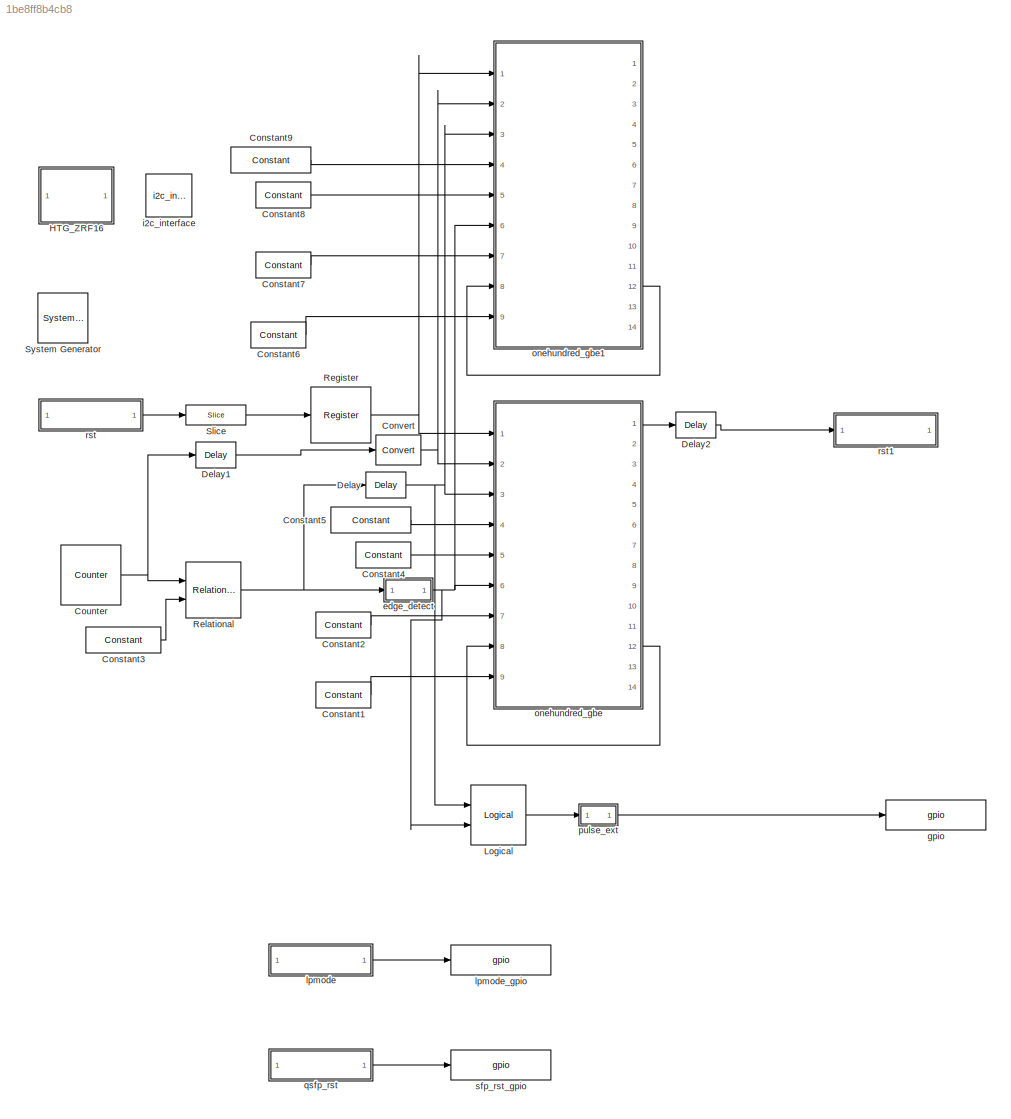
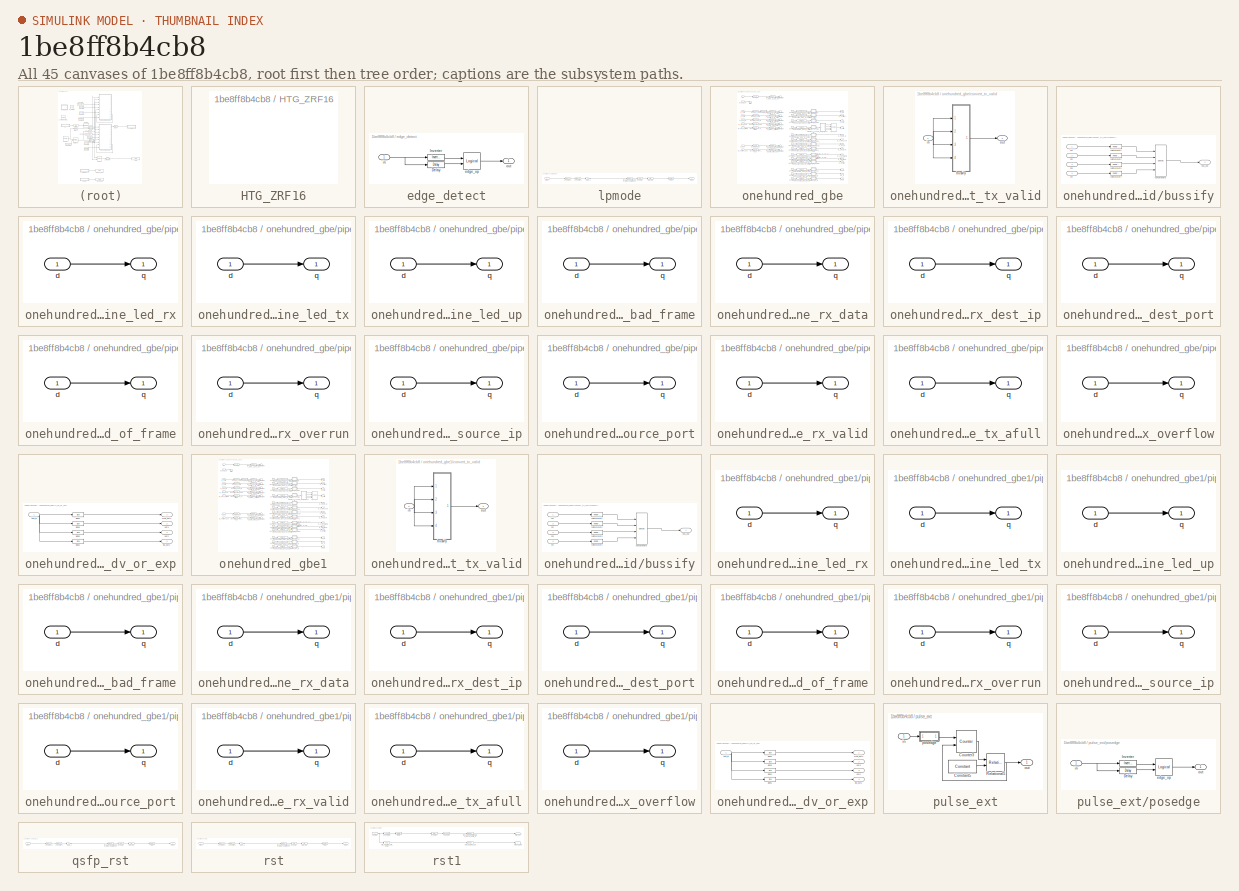
[diagram: thumbnail index - all 45 canvases of the model, root first then tree order]
MODEL slx_1be8ff8b4cb8
KIND model
CONFIG AbsTol = auto
CONFIG EnableMultiTasking = off
CONFIG FixedStep = auto
CONFIG MaxStep = auto
CONFIG MinStep = auto
CONFIG RelTol = 1e-3
CONFIG SampleTimeConstraint = Unconstrained
CONFIG Solver = VariableStepDiscrete
CONFIG SolverName = VariableStepDiscrete
CONFIG StartTime = 0.0
CONFIG StopTime = 10.0
BLOCK [Reference]  System Generator  REF=xbsIndex_r4/ System Generator
  AttributesFormatString = System\nGenerator
  Ports = []
  SourceBlock = xbsIndex_r4/ System Generator
  SourceType = Xilinx System Generator Block
  Tag = genX
  UserDataPersistent = on
BLOCK [Reference] Constant1  REF=xbsIndex_r4/Constant
  Ports = [0, 1]
  SourceBlock = xbsIndex_r4/Constant
  SourceType = Xilinx Constant Block Block
BLOCK [Reference] Constant2  REF=xbsIndex_r4/Constant
  Ports = [0, 1]
  SourceBlock = xbsIndex_r4/Constant
  SourceType = Xilinx Constant Block Block
BLOCK [Reference] Constant3  REF=xbsIndex_r4/Constant
  Ports = [0, 1]
  SourceBlock = xbsIndex_r4/Constant
  SourceType = Xilinx Constant Block Block
BLOCK [Reference] Constant4  REF=xbsIndex_r4/Constant
  Ports = [0, 1]
  SourceBlock = xbsIndex_r4/Constant
  SourceType = Xilinx Constant Block Block
BLOCK [Reference] Constant5  REF=xbsIndex_r4/Constant
  Ports = [0, 1]
  SourceBlock = xbsIndex_r4/Constant
  SourceType = Xilinx Constant Block Block
BLOCK [Reference] Constant6  REF=xbsIndex_r4/Constant
  Ports = [0, 1]
  SourceBlock = xbsIndex_r4/Constant
  SourceType = Xilinx Constant Block Block
BLOCK [Reference] Constant7  REF=xbsIndex_r4/Constant
  Ports = [0, 1]
  SourceBlock = xbsIndex_r4/Constant
  SourceType = Xilinx Constant Block Block
BLOCK [Reference] Constant8  REF=xbsIndex_r4/Constant
  Ports = [0, 1]
  SourceBlock = xbsIndex_r4/Constant
  SourceType = Xilinx Constant Block Block
BLOCK [Reference] Constant9  REF=xbsIndex_r4/Constant
  Ports = [0, 1]
  SourceBlock = xbsIndex_r4/Constant
  SourceType = Xilinx Constant Block Block
BLOCK [Reference] Convert  REF=xbsIndex_r4/Convert
  Ports = [1, 1]
  SourceBlock = xbsIndex_r4/Convert
  SourceType = Xilinx Type Converter Block
BLOCK [Reference] Counter  REF=xbsIndex_r4/Counter
  Ports = [0, 1]
  SourceBlock = xbsIndex_r4/Counter
  SourceType = Xilinx Counter Block
BLOCK [Reference] Delay  REF=xbsIndex_r4/Delay
  Ports = [1, 1]
  SourceBlock = xbsIndex_r4/Delay
  SourceType = Xilinx Delay Block
BLOCK [Reference] Delay1  REF=xbsIndex_r4/Delay
  Ports = [1, 1]
  SourceBlock = xbsIndex_r4/Delay
  SourceType = Xilinx Delay Block
BLOCK [Reference] Delay2  REF=xbsIndex_r4/Delay
  Ports = [1, 1]
  SourceBlock = xbsIndex_r4/Delay
  SourceType = Xilinx Delay Block
BLOCK [SubSystem] HTG_ZRF16
  Ports = []
  RequestExecContextInheritance = off
  Tag = xps:xsg
BLOCK [Reference] Logical  REF=xbsIndex_r4/Logical
  Ports = [2, 1]
  SourceBlock = xbsIndex_r4/Logical
  SourceType = Xilinx Logical Block Block
BLOCK [Reference] Register  REF=xbsIndex_r4/Register
  Ports = [1, 1]
  SourceBlock = xbsIndex_r4/Register
  SourceType = Xilinx Register Block
BLOCK [Reference] Relational  REF=xbsIndex_r4/Relational
  Ports = [2, 1]
  SourceBlock = xbsIndex_r4/Relational
  SourceType = Xilinx Arithmetic Relational Operator Block
BLOCK [Reference] Slice  REF=xbsIndex_r4/Slice
  Ports = [1, 1]
  SourceBlock = xbsIndex_r4/Slice
  SourceType = Xilinx Bit Slice Extractor Block
BLOCK [SubSystem] edge_detect
  AncestorBlock = casper_library_misc/edge_detect
  AttributesFormatString = falling edges\nactive high
  Ports = [1, 1]
  RequestExecContextInheritance = off
  UserDataPersistent = on
BLOCK [Reference] edge_detect/Delay  REF=xbsIndex_r4/Delay
  Ports = [1, 1]
  SourceBlock = xbsIndex_r4/Delay
  SourceType = Xilinx Delay Block
BLOCK [Reference] edge_detect/Inverter  REF=xbsIndex_r4/Inverter
  Ports = [1, 1]
  SourceBlock = xbsIndex_r4/Inverter
  SourceType = Xilinx Inverter Block
BLOCK [Reference] edge_detect/edge_op  REF=xbsIndex_r4/Logical
  Ports = [2, 1]
  SourceBlock = xbsIndex_r4/Logical
  SourceType = Xilinx Logical Block Block
BLOCK [Inport] edge_detect/in
  IconDisplay = Port number
BLOCK [Outport] edge_detect/out
  IconDisplay = Port number
BLOCK [Reference] gpio  REF=xps_library/IO/gpio  (lib defined in mdl_00b5cec29cd0, mdl_02ab6ecaa3d1, +5 more)
  Ports = [1, 1]
  SourceBlock = xps_library/IO/gpio
  SourceProductName = CASPER XPS Blockset
  SourceType = gpio
  Tag = xps:gpio
BLOCK [Reference] i2c_interface  REF=xps_library/IO/i2c_interface  (lib defined in mdl_00b5cec29cd0, mdl_02ab6ecaa3d1, +5 more)
  Ports = []
  SourceBlock = xps_library/IO/i2c_interface
  SourceProductName = CASPER XPS Blockset
  SourceType = ip
  Tag = xps:i2c_interface
BLOCK [SubSystem] lpmode
  AncestorBlock = xps_library/Memory/software_register
  AttributesFormatString = 1input:uf2.0 = 2 bits
  Ports = [1, 1]
  RequestExecContextInheritance = off
  Tag = xps:sw_reg
BLOCK [DataTypeConversion] lpmode/convert1_1
  LockScale = on
  OutDataTypeStr = fixdt('ufix2_En0')
  RndMeth = Floor
  SaturateOnIntegerOverflow = off
BLOCK [DataTypeConversion] lpmode/convert2_1
  ConvertRealWorld = Stored Integer (SI)
  LockScale = on
  OutDataTypeStr = fixdt('ufix2_En0')
  RndMeth = Floor
  SaturateOnIntegerOverflow = off
BLOCK [Gain] lpmode/gain_1
  OutDataTypeStr = Inherit: Inherit via internal rule
  ParamDataTypeStr = Inherit: Inherit via internal rule
  SaturateOnIntegerOverflow = off
BLOCK [Outport] lpmode/in_reg
  IconDisplay = Port number
BLOCK [Reference] lpmode/io_delay  REF=xbsIndex_r4/Delay
  Ports = [1, 1]
  SourceBlock = xbsIndex_r4/Delay
  SourceType = Xilinx Delay Block
BLOCK [Reference] lpmode/reint1  REF=xbsIndex_r4/Reinterpret
  Ports = [1, 1]
  SourceBlock = xbsIndex_r4/Reinterpret
  SourceType = Xilinx Type Reinterpreter Block
BLOCK [Inport] lpmode/sim_1
  IconDisplay = Port number
BLOCK [Reference] lpmode/slice_reg  REF=xbsIndex_r4/Slice
  Ports = [1, 1]
  SourceBlock = xbsIndex_r4/Slice
  SourceType = Xilinx Bit Slice Extractor Block
BLOCK [Reference] lpmode/test_onehundredgbe_jumbo_lpmode_user_data_out  REF=xbsIndex_r4/Gateway In
  Ports = [1, 1]
  SourceBlock = xbsIndex_r4/Gateway In
  SourceType = Xilinx Gateway In Block
BLOCK [Reference] lpmode_gpio  REF=xps_library/IO/gpio  (lib defined in mdl_00b5cec29cd0, mdl_02ab6ecaa3d1, +5 more)
  Ports = [1, 1]
  SourceBlock = xps_library/IO/gpio
  SourceProductName = CASPER XPS Blockset
  SourceType = gpio
  Tag = xps:gpio
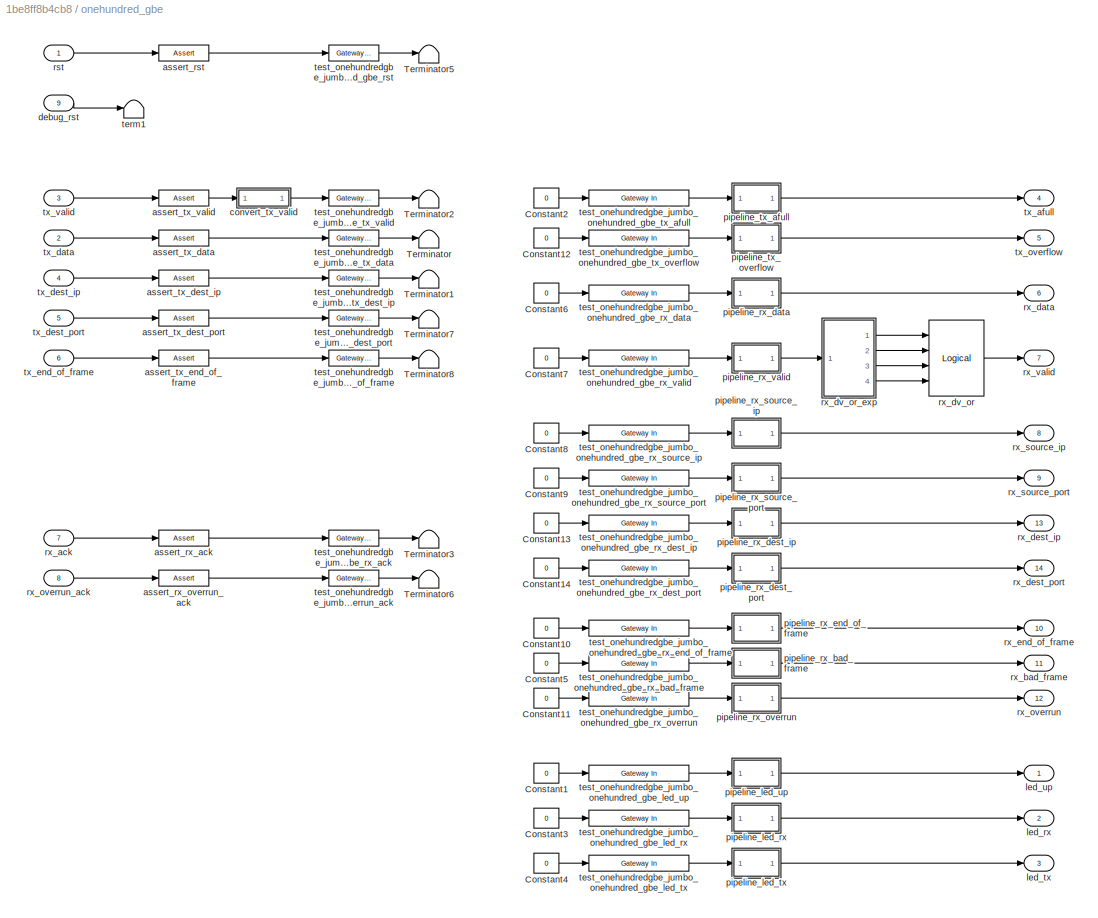
BLOCK [SubSystem] onehundred_gbe
  AncestorBlock = xps_library/IO/onehundred_gbe
  AttributesFormatString = incoming_latency=0
  Ports = [9, 14]
  RequestExecContextInheritance = off
  Tag = xps:onehundred_gbe
BLOCK [Constant] onehundred_gbe/Constant1
  Value = 0
BLOCK [Constant] onehundred_gbe/Constant10
  Value = 0
BLOCK [Constant] onehundred_gbe/Constant11
  Value = 0
BLOCK [Constant] onehundred_gbe/Constant12
  Value = 0
BLOCK [Constant] onehundred_gbe/Constant13
  Value = 0
BLOCK [Constant] onehundred_gbe/Constant14
  Value = 0
BLOCK [Constant] onehundred_gbe/Constant2
  Value = 0
BLOCK [Constant] onehundred_gbe/Constant3
  Value = 0
BLOCK [Constant] onehundred_gbe/Constant4
  Value = 0
BLOCK [Constant] onehundred_gbe/Constant5
  Value = 0
BLOCK [Constant] onehundred_gbe/Constant6
  Value = 0
BLOCK [Constant] onehundred_gbe/Constant7
  Value = 0
BLOCK [Constant] onehundred_gbe/Constant8
  Value = 0
BLOCK [Constant] onehundred_gbe/Constant9
  Value = 0
BLOCK [Terminator] onehundred_gbe/Terminator
BLOCK [Terminator] onehundred_gbe/Terminator1
BLOCK [Terminator] onehundred_gbe/Terminator2
BLOCK [Terminator] onehundred_gbe/Terminator3
BLOCK [Terminator] onehundred_gbe/Terminator5
BLOCK [Terminator] onehundred_gbe/Terminator6
BLOCK [Terminator] onehundred_gbe/Terminator7
BLOCK [Terminator] onehundred_gbe/Terminator8
BLOCK [Reference] onehundred_gbe/assert_rst  REF=xbsIndex_r4/Assert
  Ports = [1, 1]
  SourceBlock = xbsIndex_r4/Assert
  SourceType = Xilinx Assert Block
BLOCK [Reference] onehundred_gbe/assert_rx_ack  REF=xbsIndex_r4/Assert
  Ports = [1, 1]
  SourceBlock = xbsIndex_r4/Assert
  SourceType = Xilinx Assert Block
BLOCK [Reference] onehundred_gbe/assert_rx_overrun_ack  REF=xbsIndex_r4/Assert
  Ports = [1, 1]
  SourceBlock = xbsIndex_r4/Assert
  SourceType = Xilinx Assert Block
BLOCK [Reference] onehundred_gbe/assert_tx_data  REF=xbsIndex_r4/Assert
  Ports = [1, 1]
  SourceBlock = xbsIndex_r4/Assert
  SourceType = Xilinx Assert Block
BLOCK [Reference] onehundred_gbe/assert_tx_dest_ip  REF=xbsIndex_r4/Assert
  Ports = [1, 1]
  SourceBlock = xbsIndex_r4/Assert
  SourceType = Xilinx Assert Block
BLOCK [Reference] onehundred_gbe/assert_tx_dest_port  REF=xbsIndex_r4/Assert
  Ports = [1, 1]
  SourceBlock = xbsIndex_r4/Assert
  SourceType = Xilinx Assert Block
BLOCK [Reference] onehundred_gbe/assert_tx_end_of_frame  REF=xbsIndex_r4/Assert
  Ports = [1, 1]
  SourceBlock = xbsIndex_r4/Assert
  SourceType = Xilinx Assert Block
BLOCK [Reference] onehundred_gbe/assert_tx_valid  REF=xbsIndex_r4/Assert
  Ports = [1, 1]
  SourceBlock = xbsIndex_r4/Assert
  SourceType = Xilinx Assert Block
BLOCK [SubSystem] onehundred_gbe/convert_tx_valid
  AncestorBlock = casper_library_bus/bus_replicate
  Ports = [1, 1]
  RequestExecContextInheritance = off
  UserDataPersistent = on
BLOCK [SubSystem] onehundred_gbe/convert_tx_valid/bussify
  AncestorBlock = casper_library_flow_control/bus_create
  Ports = [4, 1]
  RequestExecContextInheritance = off
  UserDataPersistent = on
BLOCK [Outport] onehundred_gbe/convert_tx_valid/bussify/bus_out
  IconDisplay = Port number
BLOCK [Reference] onehundred_gbe/convert_tx_valid/bussify/concatenate  REF=xbsIndex_r4/Concat
  Ports = [4, 1]
  SourceBlock = xbsIndex_r4/Concat
  SourceType = Xilinx Bus Concatenator Block
BLOCK [Inport] onehundred_gbe/convert_tx_valid/bussify/in1
  IconDisplay = Port number
BLOCK [Inport] onehundred_gbe/convert_tx_valid/bussify/in2
  IconDisplay = Port number
  Port = 2
BLOCK [Inport] onehundred_gbe/convert_tx_valid/bussify/in3
  IconDisplay = Port number
  Port = 3
BLOCK [Inport] onehundred_gbe/convert_tx_valid/bussify/in4
  IconDisplay = Port number
  Port = 4
BLOCK [Reference] onehundred_gbe/convert_tx_valid/bussify/reinterpret1  REF=xbsIndex_r4/Reinterpret
  Ports = [1, 1]
  SourceBlock = xbsIndex_r4/Reinterpret
  SourceType = Xilinx Type Reinterpreter Block
BLOCK [Reference] onehundred_gbe/convert_tx_valid/bussify/reinterpret2  REF=xbsIndex_r4/Reinterpret
  Ports = [1, 1]
  SourceBlock = xbsIndex_r4/Reinterpret
  SourceType = Xilinx Type Reinterpreter Block
BLOCK [Reference] onehundred_gbe/convert_tx_valid/bussify/reinterpret3  REF=xbsIndex_r4/Reinterpret
  Ports = [1, 1]
  SourceBlock = xbsIndex_r4/Reinterpret
  SourceType = Xilinx Type Reinterpreter Block
BLOCK [Reference] onehundred_gbe/convert_tx_valid/bussify/reinterpret4  REF=xbsIndex_r4/Reinterpret
  Ports = [1, 1]
  SourceBlock = xbsIndex_r4/Reinterpret
  SourceType = Xilinx Type Reinterpreter Block
BLOCK [Inport] onehundred_gbe/convert_tx_valid/in
  IconDisplay = Port number
BLOCK [Outport] onehundred_gbe/convert_tx_valid/out
  IconDisplay = Port number
BLOCK [Inport] onehundred_gbe/debug_rst
  IconDisplay = Port number
  Port = 9
BLOCK [Outport] onehundred_gbe/led_rx
  IconDisplay = Port number
  Port = 2
BLOCK [Outport] onehundred_gbe/led_tx
  IconDisplay = Port number
  Port = 3
BLOCK [Outport] onehundred_gbe/led_up
  IconDisplay = Port number
BLOCK [SubSystem] onehundred_gbe/pipeline_led_rx
  AncestorBlock = casper_library_delays/pipeline
  AttributesFormatString = Latency = %<latency>
  Ports = [1, 1]
  RequestExecContextInheritance = off
  UserDataPersistent = on
BLOCK [Inport] onehundred_gbe/pipeline_led_rx/d
  IconDisplay = Port number
BLOCK [Outport] onehundred_gbe/pipeline_led_rx/q
  IconDisplay = Port number
BLOCK [SubSystem] onehundred_gbe/pipeline_led_tx
  AncestorBlock = casper_library_delays/pipeline
  AttributesFormatString = Latency = %<latency>
  Ports = [1, 1]
  RequestExecContextInheritance = off
  UserDataPersistent = on
BLOCK [Inport] onehundred_gbe/pipeline_led_tx/d
  IconDisplay = Port number
BLOCK [Outport] onehundred_gbe/pipeline_led_tx/q
  IconDisplay = Port number
BLOCK [SubSystem] onehundred_gbe/pipeline_led_up
  AncestorBlock = casper_library_delays/pipeline
  AttributesFormatString = Latency = %<latency>
  Ports = [1, 1]
  RequestExecContextInheritance = off
  UserDataPersistent = on
BLOCK [Inport] onehundred_gbe/pipeline_led_up/d
  IconDisplay = Port number
BLOCK [Outport] onehundred_gbe/pipeline_led_up/q
  IconDisplay = Port number
BLOCK [SubSystem] onehundred_gbe/pipeline_rx_bad_frame
  AncestorBlock = casper_library_delays/pipeline
  AttributesFormatString = Latency = %<latency>
  Ports = [1, 1]
  RequestExecContextInheritance = off
  UserDataPersistent = on
BLOCK [Inport] onehundred_gbe/pipeline_rx_bad_frame/d
  IconDisplay = Port number
BLOCK [Outport] onehundred_gbe/pipeline_rx_bad_frame/q
  IconDisplay = Port number
BLOCK [SubSystem] onehundred_gbe/pipeline_rx_data
  AncestorBlock = casper_library_delays/pipeline
  AttributesFormatString = Latency = %<latency>
  Ports = [1, 1]
  RequestExecContextInheritance = off
  UserDataPersistent = on
BLOCK [Inport] onehundred_gbe/pipeline_rx_data/d
  IconDisplay = Port number
BLOCK [Outport] onehundred_gbe/pipeline_rx_data/q
  IconDisplay = Port number
BLOCK [SubSystem] onehundred_gbe/pipeline_rx_dest_ip
  AncestorBlock = casper_library_delays/pipeline
  AttributesFormatString = Latency = %<latency>
  Ports = [1, 1]
  RequestExecContextInheritance = off
  UserDataPersistent = on
BLOCK [Inport] onehundred_gbe/pipeline_rx_dest_ip/d
  IconDisplay = Port number
BLOCK [Outport] onehundred_gbe/pipeline_rx_dest_ip/q
  IconDisplay = Port number
BLOCK [SubSystem] onehundred_gbe/pipeline_rx_dest_port
  AncestorBlock = casper_library_delays/pipeline
  AttributesFormatString = Latency = %<latency>
  Ports = [1, 1]
  RequestExecContextInheritance = off
  UserDataPersistent = on
BLOCK [Inport] onehundred_gbe/pipeline_rx_dest_port/d
  IconDisplay = Port number
BLOCK [Outport] onehundred_gbe/pipeline_rx_dest_port/q
  IconDisplay = Port number
BLOCK [SubSystem] onehundred_gbe/pipeline_rx_end_of_frame
  AncestorBlock = casper_library_delays/pipeline
  AttributesFormatString = Latency = %<latency>
  Ports = [1, 1]
  RequestExecContextInheritance = off
  UserDataPersistent = on
BLOCK [Inport] onehundred_gbe/pipeline_rx_end_of_frame/d
  IconDisplay = Port number
BLOCK [Outport] onehundred_gbe/pipeline_rx_end_of_frame/q
  IconDisplay = Port number
BLOCK [SubSystem] onehundred_gbe/pipeline_rx_overrun
  AncestorBlock = casper_library_delays/pipeline
  AttributesFormatString = Latency = %<latency>
  Ports = [1, 1]
  RequestExecContextInheritance = off
  UserDataPersistent = on
BLOCK [Inport] onehundred_gbe/pipeline_rx_overrun/d
  IconDisplay = Port number
BLOCK [Outport] onehundred_gbe/pipeline_rx_overrun/q
  IconDisplay = Port number
BLOCK [SubSystem] onehundred_gbe/pipeline_rx_source_ip
  AncestorBlock = casper_library_delays/pipeline
  AttributesFormatString = Latency = %<latency>
  Ports = [1, 1]
  RequestExecContextInheritance = off
  UserDataPersistent = on
BLOCK [Inport] onehundred_gbe/pipeline_rx_source_ip/d
  IconDisplay = Port number
BLOCK [Outport] onehundred_gbe/pipeline_rx_source_ip/q
  IconDisplay = Port number
BLOCK [SubSystem] onehundred_gbe/pipeline_rx_source_port
  AncestorBlock = casper_library_delays/pipeline
  AttributesFormatString = Latency = %<latency>
  Ports = [1, 1]
  RequestExecContextInheritance = off
  UserDataPersistent = on
BLOCK [Inport] onehundred_gbe/pipeline_rx_source_port/d
  IconDisplay = Port number
BLOCK [Outport] onehundred_gbe/pipeline_rx_source_port/q
  IconDisplay = Port number
BLOCK [SubSystem] onehundred_gbe/pipeline_rx_valid
  AncestorBlock = casper_library_delays/pipeline
  AttributesFormatString = Latency = %<latency>
  Ports = [1, 1]
  RequestExecContextInheritance = off
  UserDataPersistent = on
BLOCK [Inport] onehundred_gbe/pipeline_rx_valid/d
  IconDisplay = Port number
BLOCK [Outport] onehundred_gbe/pipeline_rx_valid/q
  IconDisplay = Port number
BLOCK [SubSystem] onehundred_gbe/pipeline_tx_afull
  AncestorBlock = casper_library_delays/pipeline
  AttributesFormatString = Latency = %<latency>
  Ports = [1, 1]
  RequestExecContextInheritance = off
  UserDataPersistent = on
BLOCK [Inport] onehundred_gbe/pipeline_tx_afull/d
  IconDisplay = Port number
BLOCK [Outport] onehundred_gbe/pipeline_tx_afull/q
  IconDisplay = Port number
BLOCK [SubSystem] onehundred_gbe/pipeline_tx_overflow
  AncestorBlock = casper_library_delays/pipeline
  AttributesFormatString = Latency = %<latency>
  Ports = [1, 1]
  RequestExecContextInheritance = off
  UserDataPersistent = on
BLOCK [Inport] onehundred_gbe/pipeline_tx_overflow/d
  IconDisplay = Port number
BLOCK [Outport] onehundred_gbe/pipeline_tx_overflow/q
  IconDisplay = Port number
BLOCK [Inport] onehundred_gbe/rst
  IconDisplay = Port number
BLOCK [Inport] onehundred_gbe/rx_ack
  IconDisplay = Port number
  Port = 7
BLOCK [Outport] onehundred_gbe/rx_bad_frame
  IconDisplay = Port number
  Port = 11
BLOCK [Outport] onehundred_gbe/rx_data
  IconDisplay = Port number
  Port = 6
BLOCK [Outport] onehundred_gbe/rx_dest_ip
  IconDisplay = Port number
  Port = 13
BLOCK [Outport] onehundred_gbe/rx_dest_port
  IconDisplay = Port number
  Port = 14
BLOCK [Reference] onehundred_gbe/rx_dv_or  REF=xbsIndex_r4/Logical
  Ports = [4, 1]
  SourceBlock = xbsIndex_r4/Logical
  SourceType = Xilinx Logical Block Block
BLOCK [SubSystem] onehundred_gbe/rx_dv_or_exp
  AncestorBlock = casper_library_flow_control/bus_expand
  AttributesFormatString = 4 outputs
  Ports = [1, 4]
  RequestExecContextInheritance = off
  UserDataPersistent = on
BLOCK [Inport] onehundred_gbe/rx_dv_or_exp/bus_in
  IconDisplay = Port number
BLOCK [Outport] onehundred_gbe/rx_dv_or_exp/lsb_out1
  IconDisplay = Port number
  Port = 4
BLOCK [Outport] onehundred_gbe/rx_dv_or_exp/msb_out4
  IconDisplay = Port number
BLOCK [Outport] onehundred_gbe/rx_dv_or_exp/out2
  IconDisplay = Port number
  Port = 3
BLOCK [Outport] onehundred_gbe/rx_dv_or_exp/out3
  IconDisplay = Port number
  Port = 2
BLOCK [Reference] onehundred_gbe/rx_dv_or_exp/slice1  REF=xbsIndex_r4/Slice
  Ports = [1, 1]
  SourceBlock = xbsIndex_r4/Slice
  SourceType = Xilinx Bit Slice Extractor Block
BLOCK [Reference] onehundred_gbe/rx_dv_or_exp/slice2  REF=xbsIndex_r4/Slice
  Ports = [1, 1]
  SourceBlock = xbsIndex_r4/Slice
  SourceType = Xilinx Bit Slice Extractor Block
BLOCK [Reference] onehundred_gbe/rx_dv_or_exp/slice3  REF=xbsIndex_r4/Slice
  Ports = [1, 1]
  SourceBlock = xbsIndex_r4/Slice
  SourceType = Xilinx Bit Slice Extractor Block
BLOCK [Reference] onehundred_gbe/rx_dv_or_exp/slice4  REF=xbsIndex_r4/Slice
  Ports = [1, 1]
  SourceBlock = xbsIndex_r4/Slice
  SourceType = Xilinx Bit Slice Extractor Block
BLOCK [Outport] onehundred_gbe/rx_end_of_frame
  IconDisplay = Port number
  Port = 10
BLOCK [Outport] onehundred_gbe/rx_overrun
  IconDisplay = Port number
  Port = 12
BLOCK [Inport] onehundred_gbe/rx_overrun_ack
  IconDisplay = Port number
  Port = 8
BLOCK [Outport] onehundred_gbe/rx_source_ip
  IconDisplay = Port number
  Port = 8
BLOCK [Outport] onehundred_gbe/rx_source_port
  IconDisplay = Port number
  Port = 9
BLOCK [Outport] onehundred_gbe/rx_valid
  IconDisplay = Port number
  Port = 7
BLOCK [Terminator] onehundred_gbe/term1
BLOCK [Reference] onehundred_gbe/test_onehundredgbe_jumbo_onehundred_gbe_led_rx  REF=xbsIndex_r4/Gateway In
  Ports = [1, 1]
  SourceBlock = xbsIndex_r4/Gateway In
  SourceType = Xilinx Gateway In Block
BLOCK [Reference] onehundred_gbe/test_onehundredgbe_jumbo_onehundred_gbe_led_tx  REF=xbsIndex_r4/Gateway In
  Ports = [1, 1]
  SourceBlock = xbsIndex_r4/Gateway In
  SourceType = Xilinx Gateway In Block
BLOCK [Reference] onehundred_gbe/test_onehundredgbe_jumbo_onehundred_gbe_led_up  REF=xbsIndex_r4/Gateway In
  Ports = [1, 1]
  SourceBlock = xbsIndex_r4/Gateway In
  SourceType = Xilinx Gateway In Block
BLOCK [Reference] onehundred_gbe/test_onehundredgbe_jumbo_onehundred_gbe_rst  REF=xbsIndex_r4/Gateway Out
  Ports = [1, 1]
  SourceBlock = xbsIndex_r4/Gateway Out
  SourceType = Xilinx Gateway Out Block
BLOCK [Reference] onehundred_gbe/test_onehundredgbe_jumbo_onehundred_gbe_rx_ack  REF=xbsIndex_r4/Gateway Out
  Ports = [1, 1]
  SourceBlock = xbsIndex_r4/Gateway Out
  SourceType = Xilinx Gateway Out Block
BLOCK [Reference] onehundred_gbe/test_onehundredgbe_jumbo_onehundred_gbe_rx_bad_frame  REF=xbsIndex_r4/Gateway In
  Ports = [1, 1]
  SourceBlock = xbsIndex_r4/Gateway In
  SourceType = Xilinx Gateway In Block
BLOCK [Reference] onehundred_gbe/test_onehundredgbe_jumbo_onehundred_gbe_rx_data  REF=xbsIndex_r4/Gateway In
  Ports = [1, 1]
  SourceBlock = xbsIndex_r4/Gateway In
  SourceType = Xilinx Gateway In Block
BLOCK [Reference] onehundred_gbe/test_onehundredgbe_jumbo_onehundred_gbe_rx_dest_ip  REF=xbsIndex_r4/Gateway In
  Ports = [1, 1]
  SourceBlock = xbsIndex_r4/Gateway In
  SourceType = Xilinx Gateway In Block
BLOCK [Reference] onehundred_gbe/test_onehundredgbe_jumbo_onehundred_gbe_rx_dest_port  REF=xbsIndex_r4/Gateway In
  Ports = [1, 1]
  SourceBlock = xbsIndex_r4/Gateway In
  SourceType = Xilinx Gateway In Block
BLOCK [Reference] onehundred_gbe/test_onehundredgbe_jumbo_onehundred_gbe_rx_end_of_frame  REF=xbsIndex_r4/Gateway In
  Ports = [1, 1]
  SourceBlock = xbsIndex_r4/Gateway In
  SourceType = Xilinx Gateway In Block
BLOCK [Reference] onehundred_gbe/test_onehundredgbe_jumbo_onehundred_gbe_rx_overrun  REF=xbsIndex_r4/Gateway In
  Ports = [1, 1]
  SourceBlock = xbsIndex_r4/Gateway In
  SourceType = Xilinx Gateway In Block
BLOCK [Reference] onehundred_gbe/test_onehundredgbe_jumbo_onehundred_gbe_rx_overrun_ack  REF=xbsIndex_r4/Gateway Out
  Ports = [1, 1]
  SourceBlock = xbsIndex_r4/Gateway Out
  SourceType = Xilinx Gateway Out Block
BLOCK [Reference] onehundred_gbe/test_onehundredgbe_jumbo_onehundred_gbe_rx_source_ip  REF=xbsIndex_r4/Gateway In
  Ports = [1, 1]
  SourceBlock = xbsIndex_r4/Gateway In
  SourceType = Xilinx Gateway In Block
BLOCK [Reference] onehundred_gbe/test_onehundredgbe_jumbo_onehundred_gbe_rx_source_port  REF=xbsIndex_r4/Gateway In
  Ports = [1, 1]
  SourceBlock = xbsIndex_r4/Gateway In
  SourceType = Xilinx Gateway In Block
BLOCK [Reference] onehundred_gbe/test_onehundredgbe_jumbo_onehundred_gbe_rx_valid  REF=xbsIndex_r4/Gateway In
  Ports = [1, 1]
  SourceBlock = xbsIndex_r4/Gateway In
  SourceType = Xilinx Gateway In Block
BLOCK [Reference] onehundred_gbe/test_onehundredgbe_jumbo_onehundred_gbe_tx_afull  REF=xbsIndex_r4/Gateway In
  Ports = [1, 1]
  SourceBlock = xbsIndex_r4/Gateway In
  SourceType = Xilinx Gateway In Block
BLOCK [Reference] onehundred_gbe/test_onehundredgbe_jumbo_onehundred_gbe_tx_data  REF=xbsIndex_r4/Gateway Out
  Ports = [1, 1]
  SourceBlock = xbsIndex_r4/Gateway Out
  SourceType = Xilinx Gateway Out Block
BLOCK [Reference] onehundred_gbe/test_onehundredgbe_jumbo_onehundred_gbe_tx_dest_ip  REF=xbsIndex_r4/Gateway Out
  Ports = [1, 1]
  SourceBlock = xbsIndex_r4/Gateway Out
  SourceType = Xilinx Gateway Out Block
BLOCK [Reference] onehundred_gbe/test_onehundredgbe_jumbo_onehundred_gbe_tx_dest_port  REF=xbsIndex_r4/Gateway Out
  Ports = [1, 1]
  SourceBlock = xbsIndex_r4/Gateway Out
  SourceType = Xilinx Gateway Out Block
BLOCK [Reference] onehundred_gbe/test_onehundredgbe_jumbo_onehundred_gbe_tx_end_of_frame  REF=xbsIndex_r4/Gateway Out
  Ports = [1, 1]
  SourceBlock = xbsIndex_r4/Gateway Out
  SourceType = Xilinx Gateway Out Block
BLOCK [Reference] onehundred_gbe/test_onehundredgbe_jumbo_onehundred_gbe_tx_overflow  REF=xbsIndex_r4/Gateway In
  Ports = [1, 1]
  SourceBlock = xbsIndex_r4/Gateway In
  SourceType = Xilinx Gateway In Block
BLOCK [Reference] onehundred_gbe/test_onehundredgbe_jumbo_onehundred_gbe_tx_valid  REF=xbsIndex_r4/Gateway Out
  Ports = [1, 1]
  SourceBlock = xbsIndex_r4/Gateway Out
  SourceType = Xilinx Gateway Out Block
BLOCK [Outport] onehundred_gbe/tx_afull
  IconDisplay = Port number
  Port = 4
BLOCK [Inport] onehundred_gbe/tx_data
  IconDisplay = Port number
  Port = 2
BLOCK [Inport] onehundred_gbe/tx_dest_ip
  IconDisplay = Port number
  Port = 4
BLOCK [Inport] onehundred_gbe/tx_dest_port
  IconDisplay = Port number
  Port = 5
BLOCK [Inport] onehundred_gbe/tx_end_of_frame
  IconDisplay = Port number
  Port = 6
BLOCK [Outport] onehundred_gbe/tx_overflow
  IconDisplay = Port number
  Port = 5
BLOCK [Inport] onehundred_gbe/tx_valid
  IconDisplay = Port number
  Port = 3
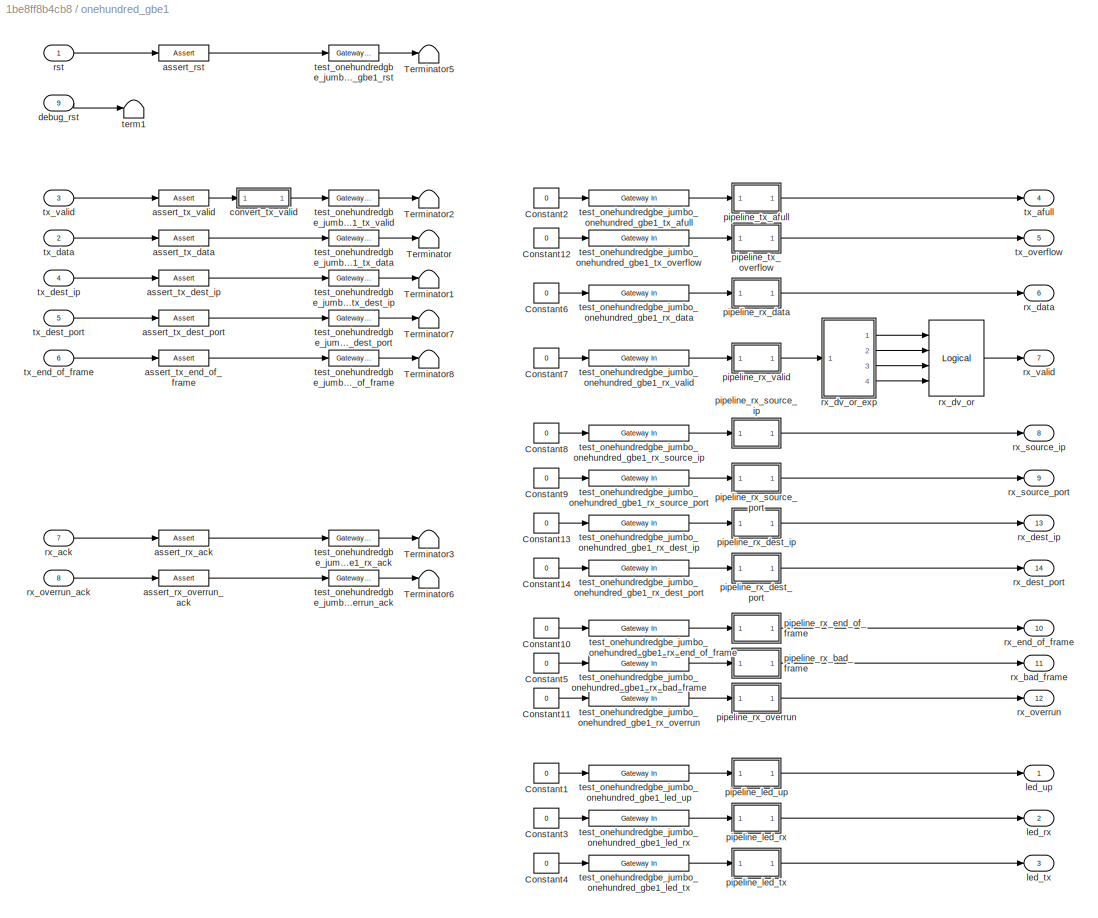
BLOCK [SubSystem] onehundred_gbe1
  AncestorBlock = xps_library/IO/onehundred_gbe
  AttributesFormatString = incoming_latency=0
  Ports = [9, 14]
  RequestExecContextInheritance = off
  Tag = xps:onehundred_gbe
BLOCK [Constant] onehundred_gbe1/Constant1
  Value = 0
BLOCK [Constant] onehundred_gbe1/Constant10
  Value = 0
BLOCK [Constant] onehundred_gbe1/Constant11
  Value = 0
BLOCK [Constant] onehundred_gbe1/Constant12
  Value = 0
BLOCK [Constant] onehundred_gbe1/Constant13
  Value = 0
BLOCK [Constant] onehundred_gbe1/Constant14
  Value = 0
BLOCK [Constant] onehundred_gbe1/Constant2
  Value = 0
BLOCK [Constant] onehundred_gbe1/Constant3
  Value = 0
BLOCK [Constant] onehundred_gbe1/Constant4
  Value = 0
BLOCK [Constant] onehundred_gbe1/Constant5
  Value = 0
BLOCK [Constant] onehundred_gbe1/Constant6
  Value = 0
BLOCK [Constant] onehundred_gbe1/Constant7
  Value = 0
BLOCK [Constant] onehundred_gbe1/Constant8
  Value = 0
BLOCK [Constant] onehundred_gbe1/Constant9
  Value = 0
BLOCK [Terminator] onehundred_gbe1/Terminator
BLOCK [Terminator] onehundred_gbe1/Terminator1
BLOCK [Terminator] onehundred_gbe1/Terminator2
BLOCK [Terminator] onehundred_gbe1/Terminator3
BLOCK [Terminator] onehundred_gbe1/Terminator5
BLOCK [Terminator] onehundred_gbe1/Terminator6
BLOCK [Terminator] onehundred_gbe1/Terminator7
BLOCK [Terminator] onehundred_gbe1/Terminator8
BLOCK [Reference] onehundred_gbe1/assert_rst  REF=xbsIndex_r4/Assert
  Ports = [1, 1]
  SourceBlock = xbsIndex_r4/Assert
  SourceType = Xilinx Assert Block
BLOCK [Reference] onehundred_gbe1/assert_rx_ack  REF=xbsIndex_r4/Assert
  Ports = [1, 1]
  SourceBlock = xbsIndex_r4/Assert
  SourceType = Xilinx Assert Block
BLOCK [Reference] onehundred_gbe1/assert_rx_overrun_ack  REF=xbsIndex_r4/Assert
  Ports = [1, 1]
  SourceBlock = xbsIndex_r4/Assert
  SourceType = Xilinx Assert Block
BLOCK [Reference] onehundred_gbe1/assert_tx_data  REF=xbsIndex_r4/Assert
  Ports = [1, 1]
  SourceBlock = xbsIndex_r4/Assert
  SourceType = Xilinx Assert Block
BLOCK [Reference] onehundred_gbe1/assert_tx_dest_ip  REF=xbsIndex_r4/Assert
  Ports = [1, 1]
  SourceBlock = xbsIndex_r4/Assert
  SourceType = Xilinx Assert Block
BLOCK [Reference] onehundred_gbe1/assert_tx_dest_port  REF=xbsIndex_r4/Assert
  Ports = [1, 1]
  SourceBlock = xbsIndex_r4/Assert
  SourceType = Xilinx Assert Block
BLOCK [Reference] onehundred_gbe1/assert_tx_end_of_frame  REF=xbsIndex_r4/Assert
  Ports = [1, 1]
  SourceBlock = xbsIndex_r4/Assert
  SourceType = Xilinx Assert Block
BLOCK [Reference] onehundred_gbe1/assert_tx_valid  REF=xbsIndex_r4/Assert
  Ports = [1, 1]
  SourceBlock = xbsIndex_r4/Assert
  SourceType = Xilinx Assert Block
BLOCK [SubSystem] onehundred_gbe1/convert_tx_valid
  AncestorBlock = casper_library_bus/bus_replicate
  Ports = [1, 1]
  RequestExecContextInheritance = off
  UserDataPersistent = on
BLOCK [SubSystem] onehundred_gbe1/convert_tx_valid/bussify
  AncestorBlock = casper_library_flow_control/bus_create
  Ports = [4, 1]
  RequestExecContextInheritance = off
  UserDataPersistent = on
BLOCK [Outport] onehundred_gbe1/convert_tx_valid/bussify/bus_out
  IconDisplay = Port number
BLOCK [Reference] onehundred_gbe1/convert_tx_valid/bussify/concatenate  REF=xbsIndex_r4/Concat
  Ports = [4, 1]
  SourceBlock = xbsIndex_r4/Concat
  SourceType = Xilinx Bus Concatenator Block
BLOCK [Inport] onehundred_gbe1/convert_tx_valid/bussify/in1
  IconDisplay = Port number
BLOCK [Inport] onehundred_gbe1/convert_tx_valid/bussify/in2
  IconDisplay = Port number
  Port = 2
BLOCK [Inport] onehundred_gbe1/convert_tx_valid/bussify/in3
  IconDisplay = Port number
  Port = 3
BLOCK [Inport] onehundred_gbe1/convert_tx_valid/bussify/in4
  IconDisplay = Port number
  Port = 4
BLOCK [Reference] onehundred_gbe1/convert_tx_valid/bussify/reinterpret1  REF=xbsIndex_r4/Reinterpret
  Ports = [1, 1]
  SourceBlock = xbsIndex_r4/Reinterpret
  SourceType = Xilinx Type Reinterpreter Block
BLOCK [Reference] onehundred_gbe1/convert_tx_valid/bussify/reinterpret2  REF=xbsIndex_r4/Reinterpret
  Ports = [1, 1]
  SourceBlock = xbsIndex_r4/Reinterpret
  SourceType = Xilinx Type Reinterpreter Block
BLOCK [Reference] onehundred_gbe1/convert_tx_valid/bussify/reinterpret3  REF=xbsIndex_r4/Reinterpret
  Ports = [1, 1]
  SourceBlock = xbsIndex_r4/Reinterpret
  SourceType = Xilinx Type Reinterpreter Block
BLOCK [Reference] onehundred_gbe1/convert_tx_valid/bussify/reinterpret4  REF=xbsIndex_r4/Reinterpret
  Ports = [1, 1]
  SourceBlock = xbsIndex_r4/Reinterpret
  SourceType = Xilinx Type Reinterpreter Block
BLOCK [Inport] onehundred_gbe1/convert_tx_valid/in
  IconDisplay = Port number
BLOCK [Outport] onehundred_gbe1/convert_tx_valid/out
  IconDisplay = Port number
BLOCK [Inport] onehundred_gbe1/debug_rst
  IconDisplay = Port number
  Port = 9
BLOCK [Outport] onehundred_gbe1/led_rx
  IconDisplay = Port number
  Port = 2
BLOCK [Outport] onehundred_gbe1/led_tx
  IconDisplay = Port number
  Port = 3
BLOCK [Outport] onehundred_gbe1/led_up
  IconDisplay = Port number
BLOCK [SubSystem] onehundred_gbe1/pipeline_led_rx
  AncestorBlock = casper_library_delays/pipeline
  AttributesFormatString = Latency = %<latency>
  Ports = [1, 1]
  RequestExecContextInheritance = off
  UserDataPersistent = on
BLOCK [Inport] onehundred_gbe1/pipeline_led_rx/d
  IconDisplay = Port number
BLOCK [Outport] onehundred_gbe1/pipeline_led_rx/q
  IconDisplay = Port number
BLOCK [SubSystem] onehundred_gbe1/pipeline_led_tx
  AncestorBlock = casper_library_delays/pipeline
  AttributesFormatString = Latency = %<latency>
  Ports = [1, 1]
  RequestExecContextInheritance = off
  UserDataPersistent = on
BLOCK [Inport] onehundred_gbe1/pipeline_led_tx/d
  IconDisplay = Port number
BLOCK [Outport] onehundred_gbe1/pipeline_led_tx/q
  IconDisplay = Port number
BLOCK [SubSystem] onehundred_gbe1/pipeline_led_up
  AncestorBlock = casper_library_delays/pipeline
  AttributesFormatString = Latency = %<latency>
  Ports = [1, 1]
  RequestExecContextInheritance = off
  UserDataPersistent = on
BLOCK [Inport] onehundred_gbe1/pipeline_led_up/d
  IconDisplay = Port number
BLOCK [Outport] onehundred_gbe1/pipeline_led_up/q
  IconDisplay = Port number
BLOCK [SubSystem] onehundred_gbe1/pipeline_rx_bad_frame
  AncestorBlock = casper_library_delays/pipeline
  AttributesFormatString = Latency = %<latency>
  Ports = [1, 1]
  RequestExecContextInheritance = off
  UserDataPersistent = on
BLOCK [Inport] onehundred_gbe1/pipeline_rx_bad_frame/d
  IconDisplay = Port number
BLOCK [Outport] onehundred_gbe1/pipeline_rx_bad_frame/q
  IconDisplay = Port number
BLOCK [SubSystem] onehundred_gbe1/pipeline_rx_data
  AncestorBlock = casper_library_delays/pipeline
  AttributesFormatString = Latency = %<latency>
  Ports = [1, 1]
  RequestExecContextInheritance = off
  UserDataPersistent = on
BLOCK [Inport] onehundred_gbe1/pipeline_rx_data/d
  IconDisplay = Port number
BLOCK [Outport] onehundred_gbe1/pipeline_rx_data/q
  IconDisplay = Port number
BLOCK [SubSystem] onehundred_gbe1/pipeline_rx_dest_ip
  AncestorBlock = casper_library_delays/pipeline
  AttributesFormatString = Latency = %<latency>
  Ports = [1, 1]
  RequestExecContextInheritance = off
  UserDataPersistent = on
BLOCK [Inport] onehundred_gbe1/pipeline_rx_dest_ip/d
  IconDisplay = Port number
BLOCK [Outport] onehundred_gbe1/pipeline_rx_dest_ip/q
  IconDisplay = Port number
BLOCK [SubSystem] onehundred_gbe1/pipeline_rx_dest_port
  AncestorBlock = casper_library_delays/pipeline
  AttributesFormatString = Latency = %<latency>
  Ports = [1, 1]
  RequestExecContextInheritance = off
  UserDataPersistent = on
BLOCK [Inport] onehundred_gbe1/pipeline_rx_dest_port/d
  IconDisplay = Port number
BLOCK [Outport] onehundred_gbe1/pipeline_rx_dest_port/q
  IconDisplay = Port number
BLOCK [SubSystem] onehundred_gbe1/pipeline_rx_end_of_frame
  AncestorBlock = casper_library_delays/pipeline
  AttributesFormatString = Latency = %<latency>
  Ports = [1, 1]
  RequestExecContextInheritance = off
  UserDataPersistent = on
BLOCK [Inport] onehundred_gbe1/pipeline_rx_end_of_frame/d
  IconDisplay = Port number
BLOCK [Outport] onehundred_gbe1/pipeline_rx_end_of_frame/q
  IconDisplay = Port number
BLOCK [SubSystem] onehundred_gbe1/pipeline_rx_overrun
  AncestorBlock = casper_library_delays/pipeline
  AttributesFormatString = Latency = %<latency>
  Ports = [1, 1]
  RequestExecContextInheritance = off
  UserDataPersistent = on
BLOCK [Inport] onehundred_gbe1/pipeline_rx_overrun/d
  IconDisplay = Port number
BLOCK [Outport] onehundred_gbe1/pipeline_rx_overrun/q
  IconDisplay = Port number
BLOCK [SubSystem] onehundred_gbe1/pipeline_rx_source_ip
  AncestorBlock = casper_library_delays/pipeline
  AttributesFormatString = Latency = %<latency>
  Ports = [1, 1]
  RequestExecContextInheritance = off
  UserDataPersistent = on
BLOCK [Inport] onehundred_gbe1/pipeline_rx_source_ip/d
  IconDisplay = Port number
BLOCK [Outport] onehundred_gbe1/pipeline_rx_source_ip/q
  IconDisplay = Port number
BLOCK [SubSystem] onehundred_gbe1/pipeline_rx_source_port
  AncestorBlock = casper_library_delays/pipeline
  AttributesFormatString = Latency = %<latency>
  Ports = [1, 1]
  RequestExecContextInheritance = off
  UserDataPersistent = on
BLOCK [Inport] onehundred_gbe1/pipeline_rx_source_port/d
  IconDisplay = Port number
BLOCK [Outport] onehundred_gbe1/pipeline_rx_source_port/q
  IconDisplay = Port number
BLOCK [SubSystem] onehundred_gbe1/pipeline_rx_valid
  AncestorBlock = casper_library_delays/pipeline
  AttributesFormatString = Latency = %<latency>
  Ports = [1, 1]
  RequestExecContextInheritance = off
  UserDataPersistent = on
BLOCK [Inport] onehundred_gbe1/pipeline_rx_valid/d
  IconDisplay = Port number
BLOCK [Outport] onehundred_gbe1/pipeline_rx_valid/q
  IconDisplay = Port number
BLOCK [SubSystem] onehundred_gbe1/pipeline_tx_afull
  AncestorBlock = casper_library_delays/pipeline
  AttributesFormatString = Latency = %<latency>
  Ports = [1, 1]
  RequestExecContextInheritance = off
  UserDataPersistent = on
BLOCK [Inport] onehundred_gbe1/pipeline_tx_afull/d
  IconDisplay = Port number
BLOCK [Outport] onehundred_gbe1/pipeline_tx_afull/q
  IconDisplay = Port number
BLOCK [SubSystem] onehundred_gbe1/pipeline_tx_overflow
  AncestorBlock = casper_library_delays/pipeline
  AttributesFormatString = Latency = %<latency>
  Ports = [1, 1]
  RequestExecContextInheritance = off
  UserDataPersistent = on
BLOCK [Inport] onehundred_gbe1/pipeline_tx_overflow/d
  IconDisplay = Port number
BLOCK [Outport] onehundred_gbe1/pipeline_tx_overflow/q
  IconDisplay = Port number
BLOCK [Inport] onehundred_gbe1/rst
  IconDisplay = Port number
BLOCK [Inport] onehundred_gbe1/rx_ack
  IconDisplay = Port number
  Port = 7
BLOCK [Outport] onehundred_gbe1/rx_bad_frame
  IconDisplay = Port number
  Port = 11
BLOCK [Outport] onehundred_gbe1/rx_data
  IconDisplay = Port number
  Port = 6
BLOCK [Outport] onehundred_gbe1/rx_dest_ip
  IconDisplay = Port number
  Port = 13
BLOCK [Outport] onehundred_gbe1/rx_dest_port
  IconDisplay = Port number
  Port = 14
BLOCK [Reference] onehundred_gbe1/rx_dv_or  REF=xbsIndex_r4/Logical
  Ports = [4, 1]
  SourceBlock = xbsIndex_r4/Logical
  SourceType = Xilinx Logical Block Block
BLOCK [SubSystem] onehundred_gbe1/rx_dv_or_exp
  AncestorBlock = casper_library_flow_control/bus_expand
  AttributesFormatString = 4 outputs
  Ports = [1, 4]
  RequestExecContextInheritance = off
  UserDataPersistent = on
BLOCK [Inport] onehundred_gbe1/rx_dv_or_exp/bus_in
  IconDisplay = Port number
BLOCK [Outport] onehundred_gbe1/rx_dv_or_exp/lsb_out1
  IconDisplay = Port number
  Port = 4
BLOCK [Outport] onehundred_gbe1/rx_dv_or_exp/msb_out4
  IconDisplay = Port number
BLOCK [Outport] onehundred_gbe1/rx_dv_or_exp/out2
  IconDisplay = Port number
  Port = 3
BLOCK [Outport] onehundred_gbe1/rx_dv_or_exp/out3
  IconDisplay = Port number
  Port = 2
BLOCK [Reference] onehundred_gbe1/rx_dv_or_exp/slice1  REF=xbsIndex_r4/Slice
  Ports = [1, 1]
  SourceBlock = xbsIndex_r4/Slice
  SourceType = Xilinx Bit Slice Extractor Block
BLOCK [Reference] onehundred_gbe1/rx_dv_or_exp/slice2  REF=xbsIndex_r4/Slice
  Ports = [1, 1]
  SourceBlock = xbsIndex_r4/Slice
  SourceType = Xilinx Bit Slice Extractor Block
BLOCK [Reference] onehundred_gbe1/rx_dv_or_exp/slice3  REF=xbsIndex_r4/Slice
  Ports = [1, 1]
  SourceBlock = xbsIndex_r4/Slice
  SourceType = Xilinx Bit Slice Extractor Block
BLOCK [Reference] onehundred_gbe1/rx_dv_or_exp/slice4  REF=xbsIndex_r4/Slice
  Ports = [1, 1]
  SourceBlock = xbsIndex_r4/Slice
  SourceType = Xilinx Bit Slice Extractor Block
BLOCK [Outport] onehundred_gbe1/rx_end_of_frame
  IconDisplay = Port number
  Port = 10
BLOCK [Outport] onehundred_gbe1/rx_overrun
  IconDisplay = Port number
  Port = 12
BLOCK [Inport] onehundred_gbe1/rx_overrun_ack
  IconDisplay = Port number
  Port = 8
BLOCK [Outport] onehundred_gbe1/rx_source_ip
  IconDisplay = Port number
  Port = 8
BLOCK [Outport] onehundred_gbe1/rx_source_port
  IconDisplay = Port number
  Port = 9
BLOCK [Outport] onehundred_gbe1/rx_valid
  IconDisplay = Port number
  Port = 7
BLOCK [Terminator] onehundred_gbe1/term1
BLOCK [Reference] onehundred_gbe1/test_onehundredgbe_jumbo_onehundred_gbe1_led_rx  REF=xbsIndex_r4/Gateway In
  Ports = [1, 1]
  SourceBlock = xbsIndex_r4/Gateway In
  SourceType = Xilinx Gateway In Block
BLOCK [Reference] onehundred_gbe1/test_onehundredgbe_jumbo_onehundred_gbe1_led_tx  REF=xbsIndex_r4/Gateway In
  Ports = [1, 1]
  SourceBlock = xbsIndex_r4/Gateway In
  SourceType = Xilinx Gateway In Block
BLOCK [Reference] onehundred_gbe1/test_onehundredgbe_jumbo_onehundred_gbe1_led_up  REF=xbsIndex_r4/Gateway In
  Ports = [1, 1]
  SourceBlock = xbsIndex_r4/Gateway In
  SourceType = Xilinx Gateway In Block
BLOCK [Reference] onehundred_gbe1/test_onehundredgbe_jumbo_onehundred_gbe1_rst  REF=xbsIndex_r4/Gateway Out
  Ports = [1, 1]
  SourceBlock = xbsIndex_r4/Gateway Out
  SourceType = Xilinx Gateway Out Block
BLOCK [Reference] onehundred_gbe1/test_onehundredgbe_jumbo_onehundred_gbe1_rx_ack  REF=xbsIndex_r4/Gateway Out
  Ports = [1, 1]
  SourceBlock = xbsIndex_r4/Gateway Out
  SourceType = Xilinx Gateway Out Block
BLOCK [Reference] onehundred_gbe1/test_onehundredgbe_jumbo_onehundred_gbe1_rx_bad_frame  REF=xbsIndex_r4/Gateway In
  Ports = [1, 1]
  SourceBlock = xbsIndex_r4/Gateway In
  SourceType = Xilinx Gateway In Block
BLOCK [Reference] onehundred_gbe1/test_onehundredgbe_jumbo_onehundred_gbe1_rx_data  REF=xbsIndex_r4/Gateway In
  Ports = [1, 1]
  SourceBlock = xbsIndex_r4/Gateway In
  SourceType = Xilinx Gateway In Block
BLOCK [Reference] onehundred_gbe1/test_onehundredgbe_jumbo_onehundred_gbe1_rx_dest_ip  REF=xbsIndex_r4/Gateway In
  Ports = [1, 1]
  SourceBlock = xbsIndex_r4/Gateway In
  SourceType = Xilinx Gateway In Block
BLOCK [Reference] onehundred_gbe1/test_onehundredgbe_jumbo_onehundred_gbe1_rx_dest_port  REF=xbsIndex_r4/Gateway In
  Ports = [1, 1]
  SourceBlock = xbsIndex_r4/Gateway In
  SourceType = Xilinx Gateway In Block
BLOCK [Reference] onehundred_gbe1/test_onehundredgbe_jumbo_onehundred_gbe1_rx_end_of_frame  REF=xbsIndex_r4/Gateway In
  Ports = [1, 1]
  SourceBlock = xbsIndex_r4/Gateway In
  SourceType = Xilinx Gateway In Block
BLOCK [Reference] onehundred_gbe1/test_onehundredgbe_jumbo_onehundred_gbe1_rx_overrun  REF=xbsIndex_r4/Gateway In
  Ports = [1, 1]
  SourceBlock = xbsIndex_r4/Gateway In
  SourceType = Xilinx Gateway In Block
BLOCK [Reference] onehundred_gbe1/test_onehundredgbe_jumbo_onehundred_gbe1_rx_overrun_ack  REF=xbsIndex_r4/Gateway Out
  Ports = [1, 1]
  SourceBlock = xbsIndex_r4/Gateway Out
  SourceType = Xilinx Gateway Out Block
BLOCK [Reference] onehundred_gbe1/test_onehundredgbe_jumbo_onehundred_gbe1_rx_source_ip  REF=xbsIndex_r4/Gateway In
  Ports = [1, 1]
  SourceBlock = xbsIndex_r4/Gateway In
  SourceType = Xilinx Gateway In Block
BLOCK [Reference] onehundred_gbe1/test_onehundredgbe_jumbo_onehundred_gbe1_rx_source_port  REF=xbsIndex_r4/Gateway In
  Ports = [1, 1]
  SourceBlock = xbsIndex_r4/Gateway In
  SourceType = Xilinx Gateway In Block
BLOCK [Reference] onehundred_gbe1/test_onehundredgbe_jumbo_onehundred_gbe1_rx_valid  REF=xbsIndex_r4/Gateway In
  Ports = [1, 1]
  SourceBlock = xbsIndex_r4/Gateway In
  SourceType = Xilinx Gateway In Block
BLOCK [Reference] onehundred_gbe1/test_onehundredgbe_jumbo_onehundred_gbe1_tx_afull  REF=xbsIndex_r4/Gateway In
  Ports = [1, 1]
  SourceBlock = xbsIndex_r4/Gateway In
  SourceType = Xilinx Gateway In Block
BLOCK [Reference] onehundred_gbe1/test_onehundredgbe_jumbo_onehundred_gbe1_tx_data  REF=xbsIndex_r4/Gateway Out
  Ports = [1, 1]
  SourceBlock = xbsIndex_r4/Gateway Out
  SourceType = Xilinx Gateway Out Block
BLOCK [Reference] onehundred_gbe1/test_onehundredgbe_jumbo_onehundred_gbe1_tx_dest_ip  REF=xbsIndex_r4/Gateway Out
  Ports = [1, 1]
  SourceBlock = xbsIndex_r4/Gateway Out
  SourceType = Xilinx Gateway Out Block
BLOCK [Reference] onehundred_gbe1/test_onehundredgbe_jumbo_onehundred_gbe1_tx_dest_port  REF=xbsIndex_r4/Gateway Out
  Ports = [1, 1]
  SourceBlock = xbsIndex_r4/Gateway Out
  SourceType = Xilinx Gateway Out Block
BLOCK [Reference] onehundred_gbe1/test_onehundredgbe_jumbo_onehundred_gbe1_tx_end_of_frame  REF=xbsIndex_r4/Gateway Out
  Ports = [1, 1]
  SourceBlock = xbsIndex_r4/Gateway Out
  SourceType = Xilinx Gateway Out Block
BLOCK [Reference] onehundred_gbe1/test_onehundredgbe_jumbo_onehundred_gbe1_tx_overflow  REF=xbsIndex_r4/Gateway In
  Ports = [1, 1]
  SourceBlock = xbsIndex_r4/Gateway In
  SourceType = Xilinx Gateway In Block
BLOCK [Reference] onehundred_gbe1/test_onehundredgbe_jumbo_onehundred_gbe1_tx_valid  REF=xbsIndex_r4/Gateway Out
  Ports = [1, 1]
  SourceBlock = xbsIndex_r4/Gateway Out
  SourceType = Xilinx Gateway Out Block
BLOCK [Outport] onehundred_gbe1/tx_afull
  IconDisplay = Port number
  Port = 4
BLOCK [Inport] onehundred_gbe1/tx_data
  IconDisplay = Port number
  Port = 2
BLOCK [Inport] onehundred_gbe1/tx_dest_ip
  IconDisplay = Port number
  Port = 4
BLOCK [Inport] onehundred_gbe1/tx_dest_port
  IconDisplay = Port number
  Port = 5
BLOCK [Inport] onehundred_gbe1/tx_end_of_frame
  IconDisplay = Port number
  Port = 6
BLOCK [Outport] onehundred_gbe1/tx_overflow
  IconDisplay = Port number
  Port = 5
BLOCK [Inport] onehundred_gbe1/tx_valid
  IconDisplay = Port number
  Port = 3
BLOCK [SubSystem] pulse_ext
  AncestorBlock = casper_library_misc/pulse_ext
  Ports = [1, 1]
  RequestExecContextInheritance = off
BLOCK [Reference] pulse_ext/Constant5  REF=xbsIndex_r4/Constant
  Ports = [0, 1]
  SourceBlock = xbsIndex_r4/Constant
  SourceType = Xilinx Constant Block Block
BLOCK [Reference] pulse_ext/Counter3  REF=xbsIndex_r4/Counter
  Ports = [2, 1]
  SourceBlock = xbsIndex_r4/Counter
  SourceType = Xilinx Counter Block
BLOCK [Reference] pulse_ext/Relational5  REF=xbsIndex_r4/Relational
  Ports = [2, 1]
  SourceBlock = xbsIndex_r4/Relational
  SourceType = Xilinx Arithmetic Relational Operator Block
BLOCK [Inport] pulse_ext/in
  IconDisplay = Port number
BLOCK [Outport] pulse_ext/out
  IconDisplay = Port number
BLOCK [SubSystem] pulse_ext/posedge
  AncestorBlock = casper_library_misc/edge_detect
  AttributesFormatString = rising edges\nactive high
  Ports = [1, 1]
  RequestExecContextInheritance = off
  UserDataPersistent = on
BLOCK [Reference] pulse_ext/posedge/Delay  REF=xbsIndex_r4/Delay
  Ports = [1, 1]
  SourceBlock = xbsIndex_r4/Delay
  SourceType = Xilinx Delay Block
BLOCK [Reference] pulse_ext/posedge/Inverter  REF=xbsIndex_r4/Inverter
  Ports = [1, 1]
  SourceBlock = xbsIndex_r4/Inverter
  SourceType = Xilinx Inverter Block
BLOCK [Reference] pulse_ext/posedge/edge_op  REF=xbsIndex_r4/Logical
  Ports = [2, 1]
  SourceBlock = xbsIndex_r4/Logical
  SourceType = Xilinx Logical Block Block
BLOCK [Inport] pulse_ext/posedge/in
  IconDisplay = Port number
BLOCK [Outport] pulse_ext/posedge/out
  IconDisplay = Port number
BLOCK [SubSystem] qsfp_rst
  AncestorBlock = xps_library/Memory/software_register
  AttributesFormatString = 1input:uf2.0 = 2 bits
  Ports = [1, 1]
  RequestExecContextInheritance = off
  Tag = xps:sw_reg
BLOCK [DataTypeConversion] qsfp_rst/convert1_1
  LockScale = on
  OutDataTypeStr = fixdt('ufix2_En0')
  RndMeth = Floor
  SaturateOnIntegerOverflow = off
BLOCK [DataTypeConversion] qsfp_rst/convert2_1
  ConvertRealWorld = Stored Integer (SI)
  LockScale = on
  OutDataTypeStr = fixdt('ufix2_En0')
  RndMeth = Floor
  SaturateOnIntegerOverflow = off
BLOCK [Gain] qsfp_rst/gain_1
  OutDataTypeStr = Inherit: Inherit via internal rule
  ParamDataTypeStr = Inherit: Inherit via internal rule
  SaturateOnIntegerOverflow = off
BLOCK [Outport] qsfp_rst/in_reg
  IconDisplay = Port number
BLOCK [Reference] qsfp_rst/io_delay  REF=xbsIndex_r4/Delay
  Ports = [1, 1]
  SourceBlock = xbsIndex_r4/Delay
  SourceType = Xilinx Delay Block
BLOCK [Reference] qsfp_rst/reint1  REF=xbsIndex_r4/Reinterpret
  Ports = [1, 1]
  SourceBlock = xbsIndex_r4/Reinterpret
  SourceType = Xilinx Type Reinterpreter Block
BLOCK [Inport] qsfp_rst/sim_1
  IconDisplay = Port number
BLOCK [Reference] qsfp_rst/slice_reg  REF=xbsIndex_r4/Slice
  Ports = [1, 1]
  SourceBlock = xbsIndex_r4/Slice
  SourceType = Xilinx Bit Slice Extractor Block
BLOCK [Reference] qsfp_rst/test_onehundredgbe_jumbo_qsfp_rst_user_data_out  REF=xbsIndex_r4/Gateway In
  Ports = [1, 1]
  SourceBlock = xbsIndex_r4/Gateway In
  SourceType = Xilinx Gateway In Block
BLOCK [SubSystem] rst
  AncestorBlock = xps_library/Memory/software_register
  AttributesFormatString = 1input:uf32.0 = 32 bits
  Ports = [1, 1]
  RequestExecContextInheritance = off
  Tag = xps:sw_reg
BLOCK [DataTypeConversion] rst/convert1_1
  LockScale = on
  OutDataTypeStr = fixdt('ufix32_En0')
  RndMeth = Floor
  SaturateOnIntegerOverflow = off
BLOCK [DataTypeConversion] rst/convert2_1
  ConvertRealWorld = Stored Integer (SI)
  LockScale = on
  OutDataTypeStr = fixdt('ufix32_En0')
  RndMeth = Floor
  SaturateOnIntegerOverflow = off
BLOCK [Gain] rst/gain_1
  OutDataTypeStr = Inherit: Inherit via internal rule
  ParamDataTypeStr = Inherit: Inherit via internal rule
  SaturateOnIntegerOverflow = off
BLOCK [Outport] rst/in_reg
  IconDisplay = Port number
BLOCK [Reference] rst/io_delay  REF=xbsIndex_r4/Delay
  Ports = [1, 1]
  SourceBlock = xbsIndex_r4/Delay
  SourceType = Xilinx Delay Block
BLOCK [Reference] rst/reint1  REF=xbsIndex_r4/Reinterpret
  Ports = [1, 1]
  SourceBlock = xbsIndex_r4/Reinterpret
  SourceType = Xilinx Type Reinterpreter Block
BLOCK [Inport] rst/sim_1
  IconDisplay = Port number
BLOCK [Reference] rst/slice_reg  REF=xbsIndex_r4/Slice
  Ports = [1, 1]
  SourceBlock = xbsIndex_r4/Slice
  SourceType = Xilinx Bit Slice Extractor Block
BLOCK [Reference] rst/test_onehundredgbe_jumbo_rst_user_data_out  REF=xbsIndex_r4/Gateway In
  Ports = [1, 1]
  SourceBlock = xbsIndex_r4/Gateway In
  SourceType = Xilinx Gateway In Block
BLOCK [SubSystem] rst1
  AncestorBlock = xps_library/Memory/software_register
  AttributesFormatString = 1output:b = 1 bits
  Ports = [1, 1]
  RequestExecContextInheritance = off
  Tag = xps:sw_reg
BLOCK [Reference] rst1/assert_reg  REF=xbsIndex_r4/Assert
  Ports = [1, 1]
  SourceBlock = xbsIndex_r4/Assert
  SourceType = Xilinx Assert Block
BLOCK [Reference] rst1/cast_gw  REF=xbsIndex_r4/Convert
  Ports = [1, 1]
  SourceBlock = xbsIndex_r4/Convert
  SourceType = Xilinx Type Converter Block
BLOCK [Reference] rst1/io_delay  REF=xbsIndex_r4/Delay
  Ports = [1, 1]
  SourceBlock = xbsIndex_r4/Delay
  SourceType = Xilinx Delay Block
BLOCK [Inport] rst1/out_reg
  IconDisplay = Port number
BLOCK [Reference] rst1/reint1  REF=xbsIndex_r4/Reinterpret
  Ports = [1, 1]
  SourceBlock = xbsIndex_r4/Reinterpret
  SourceType = Xilinx Type Reinterpreter Block
BLOCK [Terminator] rst1/sim_out
BLOCK [Outport] rst1/sim_out_reg
  IconDisplay = Port number
BLOCK [Reference] rst1/sim_out_reg_gw  REF=xbsIndex_r4/Gateway Out
  Ports = [1, 1]
  SourceBlock = xbsIndex_r4/Gateway Out
  SourceType = Xilinx Gateway Out Block
BLOCK [Reference] rst1/sim_out_reg_sim_delay  REF=xbsIndex_r4/Delay
  Ports = [1, 1]
  SourceBlock = xbsIndex_r4/Delay
  SourceType = Xilinx Delay Block
BLOCK [Reference] rst1/test_onehundredgbe_jumbo_rst1_user_data_in  REF=xbsIndex_r4/Gateway Out
  Ports = [1, 1]
  SourceBlock = xbsIndex_r4/Gateway Out
  SourceType = Xilinx Gateway Out Block
BLOCK [Reference] sfp_rst_gpio  REF=xps_library/IO/gpio  (lib defined in mdl_00b5cec29cd0, mdl_02ab6ecaa3d1, +5 more)
  Ports = [1, 1]
  SourceBlock = xps_library/IO/gpio
  SourceProductName = CASPER XPS Blockset
  SourceType = gpio
  Tag = xps:gpio
LINE Constant1:1 -> onehundred_gbe:9
LINE Constant2:1 -> onehundred_gbe:7
LINE Constant3:1 -> Relational:2
LINE Constant4:1 -> onehundred_gbe:5
LINE Constant5:1 -> onehundred_gbe:4
LINE Constant6:1 -> onehundred_gbe1:9
LINE Constant7:1 -> onehundred_gbe1:7
LINE Constant8:1 -> onehundred_gbe1:5
LINE Constant9:1 -> onehundred_gbe1:4
NET Convert:1 -> onehundred_gbe1:2, onehundred_gbe:2
NET Counter:1 -> Delay1:1, Relational:1
LINE Delay1:1 -> Convert:1
LINE Delay2:1 -> rst1:1
NET Delay:1 -> Logical:1, onehundred_gbe1:3, onehundred_gbe:3
LINE Logical:1 -> pulse_ext:1
NET Register:1 -> onehundred_gbe1:1, onehundred_gbe:1
NET Relational:1 -> Delay:1, edge_detect:1
LINE Slice:1 -> Register:1
NET edge_detect:1 -> Logical:2, onehundred_gbe1:6, onehundred_gbe:6
LINE lpmode:1 -> lpmode_gpio:1
LINE onehundred_gbe1:12 -> onehundred_gbe1:8
LINE onehundred_gbe:1 -> Delay2:1
LINE onehundred_gbe:12 -> onehundred_gbe:8
LINE pulse_ext:1 -> gpio:1
LINE qsfp_rst:1 -> sfp_rst_gpio:1
LINE rst:1 -> Slice:1
note: NET lines group one-source signal fan-out (src -> all destinations, sorted); 1:1 wires keep LINE
